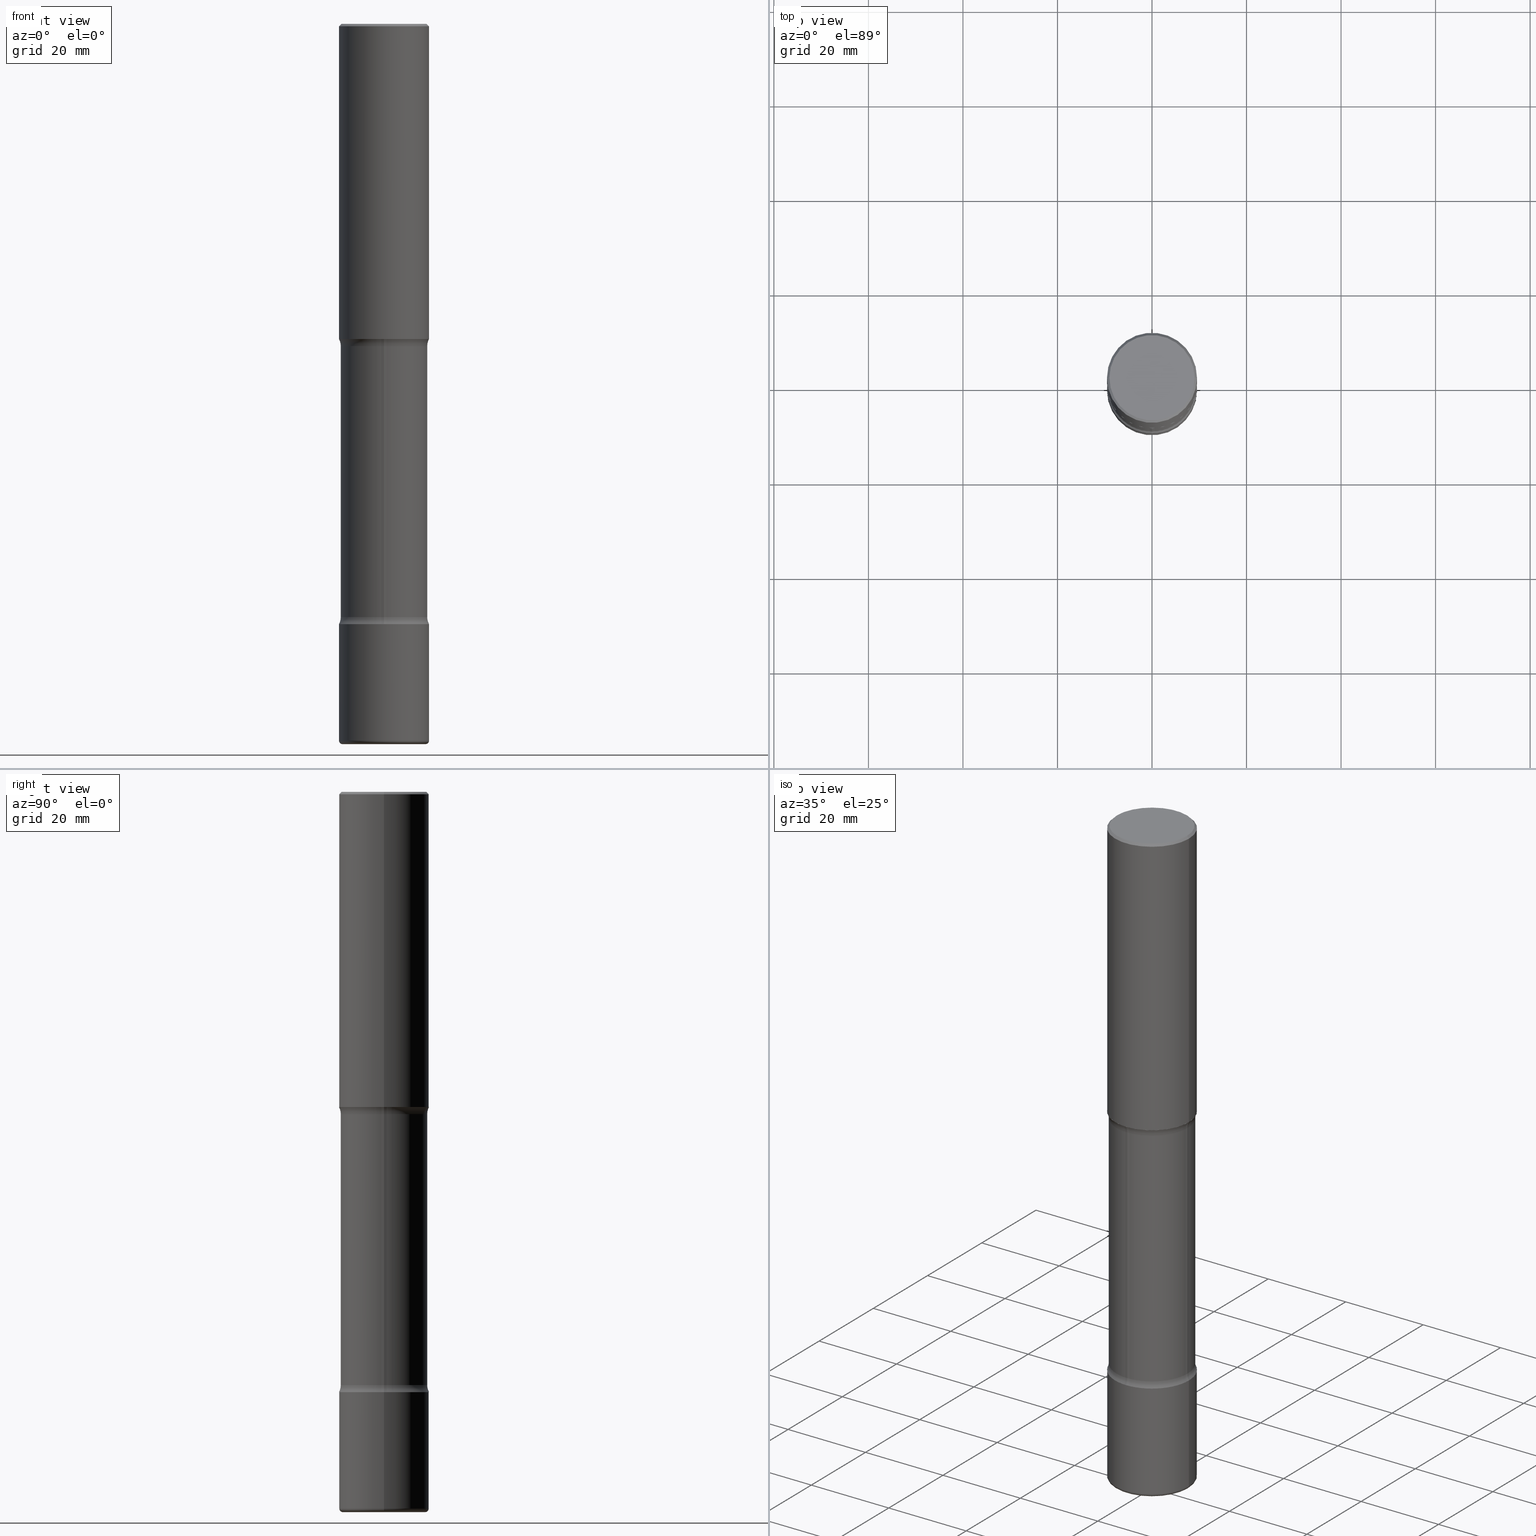
[diagram: canonical four-view strip — front | top / right | iso, engineering-drawing reading convention]
A machine part, canonical four-view strip (front | top / right | iso — engineering-drawing reading convention). The complete STEP part file that produces these views, byte-faithful:
ISO-10303-21;
HEADER;
FILE_DESCRIPTION (( 'STEP AP203' ),
    '1' );
FILE_NAME ('32863.STEP',
    '2023-03-11T07:08:39',
    ( '' ),
    ( '' ),
    'SwSTEP 2.0',
    'SolidWorks 2022',
    '' );
FILE_SCHEMA (( 'CONFIG_CONTROL_DESIGN' ));
ENDSEC;

DATA;
#1 = DIRECTION ( 'NONE',  ( -2.445468806185136597E-29, 3.491481338843145583E-15, 1.000000000000000000 ) ) ;
#2 = CARTESIAN_POINT ( 'NONE',  ( 1.467281283711082406E-28, -2.094888803305887902E-14, -6.000000000000001776 ) ) ;
#3 = CIRCLE ( 'NONE', #35, 0.3600000000000002642 ) ;
#4 = ORIENTED_EDGE ( 'NONE', *, *, #71, .F. ) ;
#5 = VECTOR ( 'NONE', #792, 39.37007874015748143 ) ;
#6 = DIRECTION ( 'NONE',  ( -2.445468806185136597E-29, 3.491481338843145583E-15, 1.000000000000000000 ) ) ;
#7 = APPROVAL ( #584, 'UNSPECIFIED' ) ;
#8 = ORIENTED_EDGE ( 'NONE', *, *, #672, .F. ) ;
#9 = ORIENTED_EDGE ( 'NONE', *, *, #31, .T. ) ;
#10 = DIRECTION ( 'NONE',  ( -1.000000000000000000, 6.982962677686265133E-15, 0.000000000000000000 ) ) ;
#11 = ORIENTED_EDGE ( 'NONE', *, *, #750, .F. ) ;
#12 = DIRECTION ( 'NONE',  ( -2.445468806185136597E-29, 3.491481338843145583E-15, 1.000000000000000000 ) ) ;
#13 = ORIENTED_EDGE ( 'NONE', *, *, #95, .F. ) ;
#14 = VERTEX_POINT ( 'NONE', #212 ) ;
#15 = CARTESIAN_POINT ( 'NONE',  ( 2.618611004132413520E-15, 0.3749999999999908962, -2.625000000000001776 ) ) ;
#16 = EDGE_LOOP ( 'NONE', ( #200, #480 ) ) ;
#17 = CIRCLE ( 'NONE', #245, 0.3750000000000000555 ) ;
#18 = CARTESIAN_POINT ( 'NONE',  ( -0.3074999999999998845, -1.880162700967035548E-14, -6.000000000000001776 ) ) ;
#19 = CIRCLE ( 'NONE', #318, 0.3750000000000000555 ) ;
#20 = CC_DESIGN_PERSON_AND_ORGANIZATION_ASSIGNMENT ( #590, #353, ( #152 ) ) ;
#21 = LINE ( 'NONE', #389, #663 ) ;
#22 = LINE ( 'NONE', #198, #413 ) ;
#23 = ORIENTED_EDGE ( 'NONE', *, *, #168, .T. ) ;
#24 = CARTESIAN_POINT ( 'NONE',  ( -0.4850000000000002087, -1.380397920673957957E-14, -4.940628289564810594 ) ) ;
#25 = CARTESIAN_POINT ( 'NONE',  ( 1.208199574947105826E-28, -1.725033575765148709E-14, -4.940628289564810594 ) ) ;
#26 =( CONVERSION_BASED_UNIT ( 'INCH', #714 ) LENGTH_UNIT ( ) NAMED_UNIT ( #237 ) );
#27 = EDGE_LOOP ( 'NONE', ( #383, #169, #709, #435 ) ) ;
#28 =( NAMED_UNIT ( * ) SI_UNIT ( $, .STERADIAN. ) SOLID_ANGLE_UNIT ( ) );
#29 = DIRECTION ( 'NONE',  ( 1.000000000000000000, -6.982962677686269077E-15, 0.000000000000000000 ) ) ;
#30 = DIRECTION ( 'NONE',  ( 2.445468806185136597E-29, -3.491481338843145583E-15, -1.000000000000000000 ) ) ;
#31 = EDGE_CURVE ( 'NONE', #484, #219, #465, .T. ) ;
#32 = ORIENTED_EDGE ( 'NONE', *, *, #545, .F. ) ;
#33 = ORIENTED_EDGE ( 'NONE', *, *, #135, .F. ) ;
#34 = EDGE_CURVE ( 'NONE', #94, #335, #279, .T. ) ;
#35 = AXIS2_PLACEMENT_3D ( 'NONE', #288, #171, #478 ) ;
#36 = TOROIDAL_SURFACE ( 'NONE', #475, 0.4849999999999996536, 0.1249999999999999306 ) ;
#37 = CARTESIAN_POINT ( 'NONE',  ( 6.558438925970630496E-29, -9.381181247110562342E-15, -2.684371710435190739 ) ) ;
#38 = ORIENTED_EDGE ( 'NONE', *, *, #631, .T. ) ;
#39 = ORIENTED_EDGE ( 'NONE', *, *, #160, .T. ) ;
#40 = MANIFOLD_SOLID_BREP ( 'Body-Move/Copy2[3]', #802 ) ;
#41 = PERSON_AND_ORGANIZATION_ROLE ( 'creator' ) ;
#42 = CARTESIAN_POINT ( 'NONE',  ( 2.618611004132472684E-15, 0.3749999999999826250, -5.000000000000002665 ) ) ;
#43 = CARTESIAN_POINT ( 'NONE',  ( 0.3549999999999997047, -2.538996582575039076E-15, 4.268512490117958041E-18 ) ) ;
#44 = VERTEX_POINT ( 'NONE', #43 ) ;
#45 = DIRECTION ( 'NONE',  ( -1.000000000000000000, 6.982962677686265922E-15, 0.000000000000000000 ) ) ;
#46 = CARTESIAN_POINT ( 'NONE',  ( 1.367617253546767986E-27, 1.538893835614542226E-13, -6.000000000000001776 ) ) ;
#47 = ORIENTED_EDGE ( 'NONE', *, *, #571, .F. ) ;
#48 = EDGE_LOOP ( 'NONE', ( #38, #136, #798, #464 ) ) ;
#49 = CIRCLE ( 'NONE', #348, 0.3750000000000000555 ) ;
#50 = CC_DESIGN_PERSON_AND_ORGANIZATION_ASSIGNMENT ( #92, #647, ( #553 ) ) ;
#51 = DIRECTION ( 'NONE',  ( 2.448106689014602584E-29, -3.487703740492383676E-15, -1.000000000000000000 ) ) ;
#52 = VECTOR ( 'NONE', #393, 39.37007874015748143 ) ;
#53 = APPROVAL_PERSON_ORGANIZATION ( #611, #239, #324 ) ;
#54 = CARTESIAN_POINT ( 'NONE',  ( 0.4849999999999996536, -1.275917063218076189E-14, -2.684371710435190739 ) ) ;
#55 = CARTESIAN_POINT ( 'NONE',  ( -0.3749999999999997780, 2.548781377355484746E-15, -0.02000000000000008715 ) ) ;
#56 = DIRECTION ( 'NONE',  ( -2.445468806185136597E-29, 3.491481338843145583E-15, 1.000000000000000000 ) ) ;
#57 = DIRECTION ( 'NONE',  ( 6.860497997771528407E-15, 1.000000000000000000, 0.000000000000000000 ) ) ;
#58 = FACE_OUTER_BOUND ( 'NONE', #784, .T. ) ;
#59 = CARTESIAN_POINT ( 'NONE',  ( 6.419355616235984688E-29, -9.165138514463258190E-15, -2.625000000000000444 ) ) ;
#60 = DIRECTION ( 'NONE',  ( -1.000000000000000000, 7.105427357600998703E-15, 0.000000000000000000 ) ) ;
#61 = ADVANCED_FACE ( 'NONE', ( #172 ), #666, .F. ) ;
#62 = DIRECTION ( 'NONE',  ( 6.860497997771531562E-15, 1.000000000000000000, 0.000000000000000000 ) ) ;
#63 = AXIS2_PLACEMENT_3D ( 'NONE', #605, #673, #57 ) ;
#64 = FACE_OUTER_BOUND ( 'NONE', #649, .T. ) ;
#65 = AXIS2_PLACEMENT_3D ( 'NONE', #235, #176, #356 ) ;
#66 = AXIS2_PLACEMENT_3D ( 'NONE', #236, #694, #567 ) ;
#67 = CARTESIAN_POINT ( 'NONE',  ( 1.208199574947105826E-28, -1.725033575765148709E-14, -4.940628289564810594 ) ) ;
#68 = AXIS2_PLACEMENT_3D ( 'NONE', #25, #497, #379 ) ;
#69 = ORIENTED_EDGE ( 'NONE', *, *, #282, .T. ) ;
#70 = MANIFOLD_SOLID_BREP ( 'Body-Move/Copy2[1]', #549 ) ;
#71 = EDGE_CURVE ( 'NONE', #743, #219, #628, .T. ) ;
#72 = EDGE_CURVE ( 'NONE', #602, #89, #163, .T. ) ;
#73 = ADVANCED_FACE ( 'NONE', ( #242 ), #125, .T. ) ;
#74 = FACE_OUTER_BOUND ( 'NONE', #138, .T. ) ;
#75 = ORIENTED_EDGE ( 'NONE', *, *, #623, .F. ) ;
#76 = CARTESIAN_POINT ( 'NONE',  ( 1.222734403092568523E-28, -1.745740669421572989E-14, -5.000000000000000000 ) ) ;
#77 = DIRECTION ( 'NONE',  ( 2.448106689014602584E-29, -3.487703740492383676E-15, -1.000000000000000000 ) ) ;
#78 = CARTESIAN_POINT ( 'NONE',  ( -0.3750000000000000555, -1.952948811519682680E-15, -2.625000000000000444 ) ) ;
#79 = DIRECTION ( 'NONE',  ( -2.445468806185136597E-29, 3.491481338843145583E-15, 1.000000000000000000 ) ) ;
#80 = CC_DESIGN_DATE_AND_TIME_ASSIGNMENT ( #202, #651, ( #490 ) ) ;
#81 = DIRECTION ( 'NONE',  ( 2.448106689014602584E-29, -3.487703740492383676E-15, -1.000000000000000000 ) ) ;
#82 = AXIS2_PLACEMENT_3D ( 'NONE', #344, #470, #734 ) ;
#83 = CIRCLE ( 'NONE', #629, 0.3450000000000000289 ) ;
#84 = ADVANCED_FACE ( 'NONE', ( #461 ), #90, .T. ) ;
#85 = DIRECTION ( 'NONE',  ( -2.445468806185136597E-29, 3.491481338843145583E-15, 1.000000000000000000 ) ) ;
#86 = CARTESIAN_POINT ( 'NONE',  ( -0.3600000000000002642, -1.474251453077752871E-14, -4.940628289564810594 ) ) ;
#87 = DIRECTION ( 'NONE',  ( 1.000000000000000000, -6.982962677686265922E-15, 4.876176775795935793E-29 ) ) ;
#88 = FACE_OUTER_BOUND ( 'NONE', #458, .T. ) ;
#89 = VERTEX_POINT ( 'NONE', #606 ) ;
#90 = CONICAL_SURFACE ( 'NONE', #786, 0.3749999999999997780, 0.7853981633974476129 ) ;
#91 = AXIS2_PLACEMENT_3D ( 'NONE', #232, #340, #737 ) ;
#92 = PERSON_AND_ORGANIZATION ( #650, #776 ) ;
#93 = EDGE_LOOP ( 'NONE', ( #632, #195, #39, #661 ) ) ;
#94 = VERTEX_POINT ( 'NONE', #42 ) ;
#95 = EDGE_CURVE ( 'NONE', #204, #201, #419, .T. ) ;
#96 = DATE_AND_TIME ( #595, #295 ) ;
#97 = DIRECTION ( 'NONE',  ( 6.982962677686265922E-15, 1.000000000000000000, -3.487703740492383676E-15 ) ) ;
#98 = EDGE_LOOP ( 'NONE', ( #69, #536 ) ) ;
#99 = ORIENTED_EDGE ( 'NONE', *, *, #287, .F. ) ;
#100 = DATE_TIME_ROLE ( 'classification_date' ) ;
#101 = DIRECTION ( 'NONE',  ( 2.448106689014602584E-29, -3.487703740492383676E-15, -1.000000000000000000 ) ) ;
#102 = DIRECTION ( 'NONE',  ( -6.982962677686266711E-15, -1.000000000000000000, 3.491481338843145583E-15 ) ) ;
#103 = ORIENTED_EDGE ( 'NONE', *, *, #724, .T. ) ;
#104 = CIRCLE ( 'NONE', #735, 0.3750000000000000555 ) ;
#105 = DIRECTION ( 'NONE',  ( 0.000000000000000000, 0.000000000000000000, 1.000000000000000000 ) ) ;
#106 = AXIS2_PLACEMENT_3D ( 'NONE', #118, #352, #290 ) ;
#107 = AXIS2_PLACEMENT_3D ( 'NONE', #403, #123, #669 ) ;
#108 = ORIENTED_EDGE ( 'NONE', *, *, #545, .T. ) ;
#109 = DIRECTION ( 'NONE',  ( -6.982962677686268288E-15, -1.000000000000000000, 0.000000000000000000 ) ) ;
#110 = EDGE_LOOP ( 'NONE', ( #771, #723, #153, #509 ) ) ;
#111 = ORIENTED_EDGE ( 'NONE', *, *, #610, .F. ) ;
#112 = LINE ( 'NONE', #55, #412 ) ;
#113 = DIRECTION ( 'NONE',  ( 1.000000000000000000, -6.860497997771530774E-15, 4.840845141861429852E-29 ) ) ;
#114 = AXIS2_PLACEMENT_3D ( 'NONE', #534, #227, #272 ) ;
#115 = AXIS2_PLACEMENT_3D ( 'NONE', #698, #373, #10 ) ;
#116 = AXIS2_PLACEMENT_3D ( 'NONE', #257, #710, #197 ) ;
#117 = CARTESIAN_POINT ( 'NONE',  ( -2.469779279197604413E-15, -0.3600000000000208589, -5.989261863381288187 ) ) ;
#118 = CARTESIAN_POINT ( 'NONE',  ( 1.208215236508657052E-28, -1.725011147517606617E-14, -4.940628289564810594 ) ) ;
#119 = DIRECTION ( 'NONE',  ( -2.445468806185136597E-29, 3.491481338843145583E-15, 1.000000000000000000 ) ) ;
#120 = DIRECTION ( 'NONE',  ( 1.000000000000000000, -6.982962677686265133E-15, 0.000000000000000000 ) ) ;
#121 = SHAPE_DEFINITION_REPRESENTATION ( #748, #755 ) ;
#122 = CARTESIAN_POINT ( 'NONE',  ( -0.4849999999999996536, -5.926301465066440834E-15, -2.684371710435190739 ) ) ;
#123 = DIRECTION ( 'NONE',  ( -2.445468806185136597E-29, 3.491481338843145583E-15, 1.000000000000000000 ) ) ;
#124 = DIRECTION ( 'NONE',  ( 1.000000000000000000, -6.982962677686261977E-15, 0.000000000000000000 ) ) ;
#125 = TOROIDAL_SURFACE ( 'NONE', #205, 0.3450000000000000289, 0.03000000000000029379 ) ;
#126 = DIRECTION ( 'NONE',  ( 0.9993908270190957621, -6.978169709227537544E-15, -0.03489949670249974795 ) ) ;
#127 = CIRCLE ( 'NONE', #487, 0.3750000000000000555 ) ;
#128 = CARTESIAN_POINT ( 'NONE',  ( 2.513866563967178131E-15, 0.3599999999999830003, -4.940628289564811482 ) ) ;
#129 = AXIS2_PLACEMENT_3D ( 'NONE', #775, #637, #313 ) ;
#130 = ADVANCED_FACE ( 'NONE', ( #530 ), #785, .T. ) ;
#131 = DIRECTION ( 'NONE',  ( 2.445468806185136597E-29, -3.491481338843145583E-15, -1.000000000000000000 ) ) ;
#132 = DIRECTION ( 'NONE',  ( -2.445468806185136597E-29, 3.491481338843145583E-15, 1.000000000000000000 ) ) ;
#133 = ORIENTED_EDGE ( 'NONE', *, *, #646, .T. ) ;
#134 = DIRECTION ( 'NONE',  ( 1.000000000000000000, -6.982962677686266711E-15, 0.000000000000000000 ) ) ;
#135 = EDGE_CURVE ( 'NONE', #704, #320, #221, .T. ) ;
#136 = ORIENTED_EDGE ( 'NONE', *, *, #369, .T. ) ;
#137 = CARTESIAN_POINT ( 'NONE',  ( 6.564547282075098274E-29, -9.372433733502923486E-15, -2.684371710435190739 ) ) ;
#138 = EDGE_LOOP ( 'NONE', ( #253, #317, #456, #569 ) ) ;
#139 = ORIENTED_EDGE ( 'NONE', *, *, #179, .T. ) ;
#140 = AXIS2_PLACEMENT_3D ( 'NONE', #46, #797, #355 ) ;
#141 = CARTESIAN_POINT ( 'NONE',  ( 0.3750000000000000555, -1.178374951859560978E-14, -2.625000000000000444 ) ) ;
#142 = ORIENTED_EDGE ( 'NONE', *, *, #610, .T. ) ;
#143 = CARTESIAN_POINT ( 'NONE',  ( 6.564547282075098274E-29, -9.372433733502923486E-15, -2.684371710435190739 ) ) ;
#144 = DIRECTION ( 'NONE',  ( 1.000000000000000000, -6.982962677686264344E-15, 0.000000000000000000 ) ) ;
#145 = ORIENTED_EDGE ( 'NONE', *, *, #483, .F. ) ;
#146 = CARTESIAN_POINT ( 'NONE',  ( 1.109248525150809584E-27, -1.583712912594858228E-13, -45.35934060353877584 ) ) ;
#147 = DIRECTION ( 'NONE',  ( -0.9993908270190957621, 6.856857904024561992E-15, -0.03489949670249974795 ) ) ;
#148 = EDGE_LOOP ( 'NONE', ( #436, #504, #395, #751 ) ) ;
#149 = VECTOR ( 'NONE', #806, 39.37007874015748854 ) ;
#150 = AXIS2_PLACEMENT_3D ( 'NONE', #2, #397, #329 ) ;
#151 = EDGE_CURVE ( 'NONE', #783, #404, #112, .T. ) ;
#152 = PRODUCT_DEFINITION_FORMATION_WITH_SPECIFIED_SOURCE ( 'ANY', '', #553, .NOT_KNOWN. ) ;
#153 = ORIENTED_EDGE ( 'NONE', *, *, #583, .T. ) ;
#154 = ADVANCED_FACE ( 'NONE', ( #229 ), #216, .T. ) ;
#155 = DIRECTION ( 'NONE',  ( 6.982962677686265922E-15, 1.000000000000000000, -2.913971193241880372E-15 ) ) ;
#156 = VERTEX_POINT ( 'NONE', #180 ) ;
#157 = VERTEX_POINT ( 'NONE', #414 ) ;
#158 = APPLICATION_PROTOCOL_DEFINITION ( 'international standard', 'config_control_design', 1994, #558 ) ;
#159 = DIRECTION ( 'NONE',  ( 2.448106689014602584E-29, -3.487703740492383676E-15, -1.000000000000000000 ) ) ;
#160 = EDGE_CURVE ( 'NONE', #270, #404, #659, .T. ) ;
#161 = FACE_OUTER_BOUND ( 'NONE', #766, .T. ) ;
#162 = ORIENTED_EDGE ( 'NONE', *, *, #135, .T. ) ;
#163 = CIRCLE ( 'NONE', #564, 0.3599999999999997646 ) ;
#164 = AXIS2_PLACEMENT_3D ( 'NONE', #143, #522, #312 ) ;
#165 = AXIS2_PLACEMENT_3D ( 'NONE', #502, #634, #144 ) ;
#166 = DIRECTION ( 'NONE',  ( -2.445468806185136597E-29, 3.491481338843145583E-15, 1.000000000000000000 ) ) ;
#167 = ORIENTED_EDGE ( 'NONE', *, *, #556, .T. ) ;
#168 = EDGE_CURVE ( 'NONE', #783, #44, #266, .T. ) ;
#169 = ORIENTED_EDGE ( 'NONE', *, *, #585, .T. ) ;
#170 = DIRECTION ( 'NONE',  ( 1.000000000000000000, -6.982962677686266711E-15, 4.876176775795935793E-29 ) ) ;
#171 = DIRECTION ( 'NONE',  ( -2.445468806185136597E-29, 3.491481338843145583E-15, 1.000000000000000000 ) ) ;
#172 = FACE_OUTER_BOUND ( 'NONE', #213, .T. ) ;
#173 = DIRECTION ( 'NONE',  ( -2.448106689014602584E-29, 3.487703740492383282E-15, 1.000000000000000000 ) ) ;
#174 = CARTESIAN_POINT ( 'NONE',  ( 3.386736898677901911E-15, 0.4849999999999903277, -2.684371710435192515 ) ) ;
#175 = DIRECTION ( 'NONE',  ( -1.000000000000000000, 7.105427357601050768E-15, 0.000000000000000000 ) ) ;
#176 = DIRECTION ( 'NONE',  ( -2.445468806185136597E-29, 3.491481338843145583E-15, 1.000000000000000000 ) ) ;
#177 = LINE ( 'NONE', #220, #747 ) ;
#178 = DATE_AND_TIME ( #473, #551 ) ;
#179 = EDGE_CURVE ( 'NONE', #204, #270, #707, .T. ) ;
#180 = CARTESIAN_POINT ( 'NONE',  ( 0.3074999999999998845, -2.305849116737362358E-14, -6.000000000000001776 ) ) ;
#181 = CIRCLE ( 'NONE', #744, 0.1249999999999999584 ) ;
#182 = AXIS2_PLACEMENT_3D ( 'NONE', #421, #370, #689 ) ;
#183 = ORIENTED_EDGE ( 'NONE', *, *, #369, .F. ) ;
#184 = CLOSED_SHELL ( 'NONE', ( #795, #84, #452, #341, #328, #130 ) ) ;
#185 = CIRCLE ( 'NONE', #774, 0.1249999999999999029 ) ;
#186 = APPROVAL_PERSON_ORGANIZATION ( #523, #7, #781 ) ;
#187 = ORIENTED_EDGE ( 'NONE', *, *, #392, .F. ) ;
#188 = EDGE_CURVE ( 'NONE', #555, #743, #181, .T. ) ;
#189 = DIRECTION ( 'NONE',  ( 1.000000000000000000, -6.982962677686270655E-15, 0.000000000000000000 ) ) ;
#190 = EDGE_CURVE ( 'NONE', #367, #532, #636, .T. ) ;
#191 = AXIS2_PLACEMENT_3D ( 'NONE', #231, #289, #615 ) ;
#192 = TOROIDAL_SURFACE ( 'NONE', #294, 0.4850000000000002087, 0.1250000000000000000 ) ;
#193 = DIRECTION ( 'NONE',  ( -2.445468806185136597E-29, 3.491481338843145583E-15, 1.000000000000000000 ) ) ;
#194 = AXIS2_PLACEMENT_3D ( 'NONE', #303, #357, #479 ) ;
#195 = ORIENTED_EDGE ( 'NONE', *, *, #287, .T. ) ;
#196 = EDGE_LOOP ( 'NONE', ( #255, #261, #139, #645 ) ) ;
#197 = DIRECTION ( 'NONE',  ( 1.000000000000000000, -6.982962677686267499E-15, 0.000000000000000000 ) ) ;
#198 = CARTESIAN_POINT ( 'NONE',  ( -2.262502573724503006E-17, -2.091139602944069967E-14, -5.989261863381289963 ) ) ;
#199 = PLANE ( 'NONE',  #758 ) ;
#200 = ORIENTED_EDGE ( 'NONE', *, *, #359, .T. ) ;
#201 = VERTEX_POINT ( 'NONE', #78 ) ;
#202 = DATE_AND_TIME ( #259, #805 ) ;
#203 = DIRECTION ( 'NONE',  ( 6.982962677686265922E-15, 1.000000000000000000, -2.913971193241880372E-15 ) ) ;
#204 = VERTEX_POINT ( 'NONE', #141 ) ;
#205 = AXIS2_PLACEMENT_3D ( 'NONE', #467, #274, #608 ) ;
#206 = EDGE_CURVE ( 'NONE', #587, #14, #104, .T. ) ;
#207 =( GEOMETRIC_REPRESENTATION_CONTEXT ( 3 ) GLOBAL_UNCERTAINTY_ASSIGNED_CONTEXT ( ( #542 ) ) GLOBAL_UNIT_ASSIGNED_CONTEXT ( ( #26, #678, #28 ) ) REPRESENTATION_CONTEXT ( 'NONE', 'WORKASPACE' ) );
#208 = DATE_AND_TIME ( #643, #415 ) ;
#209 = LINE ( 'NONE', #390, #52 ) ;
#210 = ORIENTED_EDGE ( 'NONE', *, *, #248, .T. ) ;
#211 = CARTESIAN_POINT ( 'NONE',  ( 0.000000000000000000, 0.000000000000000000, 0.000000000000000000 ) ) ;
#212 = CARTESIAN_POINT ( 'NONE',  ( 0.3750000000000000555, -1.178374951859560978E-14, -2.625000000000000444 ) ) ;
#213 = EDGE_LOOP ( 'NONE', ( #779, #145 ) ) ;
#214 = DIRECTION ( 'NONE',  ( 1.000000000000000000, -6.982962677686266711E-15, 0.000000000000000000 ) ) ;
#215 = COORDINATED_UNIVERSAL_TIME_OFFSET ( 5, 0, .BEHIND. ) ;
#216 = CYLINDRICAL_SURFACE ( 'NONE', #82, 0.3599999999999999867 ) ;
#217 = ADVANCED_FACE ( 'NONE', ( #447 ), #459, .T. ) ;
#218 = PLANE ( 'NONE',  #500 ) ;
#219 = VERTEX_POINT ( 'NONE', #653 ) ;
#220 = CARTESIAN_POINT ( 'NONE',  ( 0.3750000000000001110, -2.618611004132350411E-15, 1.828566290923476483E-29 ) ) ;
#221 = CIRCLE ( 'NONE', #685, 0.03000000000000029379 ) ;
#222 = DIRECTION ( 'NONE',  ( -2.445468806185136597E-29, 3.491481338843145583E-15, 1.000000000000000000 ) ) ;
#223 = AXIS2_PLACEMENT_3D ( 'NONE', #76, #300, #306 ) ;
#224 = DIRECTION ( 'NONE',  ( 7.105427357601001859E-15, 1.000000000000000000, -3.491481338843145583E-15 ) ) ;
#225 = ORIENTED_EDGE ( 'NONE', *, *, #282, .F. ) ;
#226 = DIRECTION ( 'NONE',  ( -1.000000000000000000, 6.982962677686265922E-15, -4.883557194083112340E-29 ) ) ;
#227 = DIRECTION ( 'NONE',  ( -2.445468806185136597E-29, 3.491481338843145583E-15, 1.000000000000000000 ) ) ;
#228 = CARTESIAN_POINT ( 'NONE',  ( 1.459944877292526494E-28, -2.084414359289357934E-14, -5.969999999999999751 ) ) ;
#229 = FACE_OUTER_BOUND ( 'NONE', #719, .T. ) ;
#230 = FACE_OUTER_BOUND ( 'NONE', #148, .T. ) ;
#231 = CARTESIAN_POINT ( 'NONE',  ( 6.419355616235984688E-29, -9.165138514463258190E-15, -2.625000000000000444 ) ) ;
#232 = CARTESIAN_POINT ( 'NONE',  ( 1.464916261585646880E-28, -2.090765899545711847E-14, -5.989261863381289963 ) ) ;
#233 = AXIS2_PLACEMENT_3D ( 'NONE', #410, #537, #791 ) ;
#234 = AXIS2_PLACEMENT_3D ( 'NONE', #67, #728, #614 ) ;
#235 = CARTESIAN_POINT ( 'NONE',  ( 1.467281283711081958E-28, -2.094888803305887271E-14, -6.000000000000000888 ) ) ;
#236 = CARTESIAN_POINT ( 'NONE',  ( 3.386736898677961076E-15, 0.4849999999999829448, -4.940628289564813258 ) ) ;
#237 = DIMENSIONAL_EXPONENTS ( 1.000000000000000000, 0.000000000000000000, 0.000000000000000000, 0.000000000000000000, 0.000000000000000000, 0.000000000000000000, 0.000000000000000000 ) ;
#238 = CARTESIAN_POINT ( 'NONE',  ( 6.564547282075098274E-29, -9.372433733502923486E-15, -2.684371710435190739 ) ) ;
#239 = APPROVAL ( #773, 'UNSPECIFIED' ) ;
#240 = CARTESIAN_POINT ( 'NONE',  ( 1.222734403092568523E-28, -1.745740669421572989E-14, -5.000000000000000000 ) ) ;
#241 = VERTEX_POINT ( 'NONE', #455 ) ;
#242 = FACE_OUTER_BOUND ( 'NONE', #463, .T. ) ;
#243 = CIRCLE ( 'NONE', #448, 0.1249999999999999584 ) ;
#244 = DIRECTION ( 'NONE',  ( -1.000000000000000000, 6.982962677686265133E-15, 0.000000000000000000 ) ) ;
#245 = AXIS2_PLACEMENT_3D ( 'NONE', #310, #525, #572 ) ;
#246 = CC_DESIGN_SECURITY_CLASSIFICATION ( #738, ( #152 ) ) ;
#247 = CARTESIAN_POINT ( 'NONE',  ( 1.208215236508657052E-28, -1.725011147517606617E-14, -4.940628289564810594 ) ) ;
#248 = EDGE_CURVE ( 'NONE', #338, #367, #538, .T. ) ;
#249 = DIRECTION ( 'NONE',  ( -2.445468806185136597E-29, 3.491481338843145583E-15, 1.000000000000000000 ) ) ;
#250 = FACE_OUTER_BOUND ( 'NONE', #706, .T. ) ;
#251 = CIRCLE ( 'NONE', #720, 0.3750000000000000555 ) ;
#252 = CARTESIAN_POINT ( 'NONE',  ( 1.222734403092568523E-28, -1.745740669421572989E-14, -5.000000000000000000 ) ) ;
#253 = ORIENTED_EDGE ( 'NONE', *, *, #613, .F. ) ;
#254 = CIRCLE ( 'NONE', #68, 0.3600000000000002642 ) ;
#255 = ORIENTED_EDGE ( 'NONE', *, *, #453, .F. ) ;
#256 = CARTESIAN_POINT ( 'NONE',  ( 0.3749999999999998890, -2.618611004132349228E-15, 1.828566290923475362E-29 ) ) ;
#257 = CARTESIAN_POINT ( 'NONE',  ( 6.564547282075098274E-29, -9.372433733502923486E-15, -2.684371710435190739 ) ) ;
#258 = ORIENTED_EDGE ( 'NONE', *, *, #671, .F. ) ;
#259 = CALENDAR_DATE ( 2023, 11, 3 ) ;
#260 = EDGE_CURVE ( 'NONE', #496, #241, #400, .T. ) ;
#261 = ORIENTED_EDGE ( 'NONE', *, *, #494, .T. ) ;
#262 = VERTEX_POINT ( 'NONE', #275 ) ;
#263 = CARTESIAN_POINT ( 'NONE',  ( 1.222734403092568523E-28, -1.745740669421572989E-14, -5.000000000000000000 ) ) ;
#264 = DIRECTION ( 'NONE',  ( 1.000000000000000000, 0.000000000000000000, 0.000000000000000000 ) ) ;
#265 = CARTESIAN_POINT ( 'NONE',  ( 0.4850000000000002087, -2.063684837385390615E-14, -4.940628289564810594 ) ) ;
#266 = CIRCLE ( 'NONE', #674, 0.3549999999999997047 ) ;
#267 = AXIS2_PLACEMENT_3D ( 'NONE', #360, #173, #670 ) ;
#268 = APPROVAL_PERSON_ORGANIZATION ( #601, #350, #332 ) ;
#269 = CARTESIAN_POINT ( 'NONE',  ( 6.413090644516002406E-29, -9.174110310546317964E-15, -2.625000000000000444 ) ) ;
#270 = VERTEX_POINT ( 'NONE', #524 ) ;
#271 = APPROVAL_DATE_TIME ( #96, #239 ) ;
#272 = DIRECTION ( 'NONE',  ( 1.000000000000000000, -6.982962677686266711E-15, 0.000000000000000000 ) ) ;
#273 = ORIENTED_EDGE ( 'NONE', *, *, #188, .F. ) ;
#274 = DIRECTION ( 'NONE',  ( -2.445468806185136597E-29, 3.491481338843145583E-15, 1.000000000000000000 ) ) ;
#275 = CARTESIAN_POINT ( 'NONE',  ( 0.3750000000000002220, -2.346275459702592935E-14, -5.969999999999999751 ) ) ;
#276 = ORIENTED_EDGE ( 'NONE', *, *, #71, .T. ) ;
#277 = DIRECTION ( 'NONE',  ( 1.000000000000000000, -6.982962677686265922E-15, 4.876176775795935793E-29 ) ) ;
#278 = DIRECTION ( 'NONE',  ( -2.445468806185136597E-29, 3.491481338843145583E-15, 1.000000000000000000 ) ) ;
#279 = CIRCLE ( 'NONE', #711, 0.3750000000000000555 ) ;
#280 = TOROIDAL_SURFACE ( 'NONE', #550, 0.4849999999999996536, 0.1249999999999999306 ) ;
#281 = LOCAL_TIME ( 2, 8, 39.00000000000000000, #732 ) ;
#282 = EDGE_CURVE ( 'NONE', #14, #587, #49, .T. ) ;
#283 = EDGE_CURVE ( 'NONE', #449, #262, #486, .T. ) ;
#284 = DIRECTION ( 'NONE',  ( -6.982962677686266711E-15, -1.000000000000000000, 3.491481338843145583E-15 ) ) ;
#285 = DIRECTION ( 'NONE',  ( -0.7071067811865469066, 2.468850131082251144E-15, -0.7071067811865479058 ) ) ;
#286 = LINE ( 'NONE', #544, #498 ) ;
#287 = EDGE_CURVE ( 'NONE', #44, #270, #787, .T. ) ;
#288 = CARTESIAN_POINT ( 'NONE',  ( 1.208215236508657052E-28, -1.725011147517606617E-14, -4.940628289564810594 ) ) ;
#289 = DIRECTION ( 'NONE',  ( 2.448106689014602584E-29, -3.487703740492383282E-15, -1.000000000000000000 ) ) ;
#290 = DIRECTION ( 'NONE',  ( 1.000000000000000000, -6.982962677686263555E-15, 0.000000000000000000 ) ) ;
#291 = EDGE_CURVE ( 'NONE', #587, #602, #243, .T. ) ;
#292 = AXIS2_PLACEMENT_3D ( 'NONE', #624, #79, #134 ) ;
#293 = FACE_BOUND ( 'NONE', #725, .T. ) ;
#294 = AXIS2_PLACEMENT_3D ( 'NONE', #627, #77, #97 ) ;
#295 = LOCAL_TIME ( 2, 8, 39.00000000000000000, #215 ) ;
#296 = CARTESIAN_POINT ( 'NONE',  ( 0.3450000000000000289, -2.335801015686063598E-14, -6.000000000000000888 ) ) ;
#297 = EDGE_CURVE ( 'NONE', #555, #484, #3, .T. ) ;
#298 = DIRECTION ( 'NONE',  ( -2.445468806185136877E-29, 3.491481338843145188E-15, 1.000000000000000000 ) ) ;
#299 = CARTESIAN_POINT ( 'NONE',  ( 2.513866563967119756E-15, 0.3599999999999904388, -2.684371710435191627 ) ) ;
#300 = DIRECTION ( 'NONE',  ( -2.445468806185136597E-29, 3.491481338843145583E-15, 1.000000000000000000 ) ) ;
#301 = EDGE_CURVE ( 'NONE', #704, #449, #474, .T. ) ;
#302 = VECTOR ( 'NONE', #765, 39.37007874015748143 ) ;
#303 = CARTESIAN_POINT ( 'NONE',  ( 0.000000000000000000, 0.000000000000000000, 0.000000000000000000 ) ) ;
#304 = AXIS2_PLACEMENT_3D ( 'NONE', #137, #769, #394 ) ;
#305 = AXIS2_PLACEMENT_3D ( 'NONE', #799, #105, #264 ) ;
#306 = DIRECTION ( 'NONE',  ( 1.000000000000000000, -6.982962677686266711E-15, 0.000000000000000000 ) ) ;
#307 = DIRECTION ( 'NONE',  ( 1.000000000000000000, -6.982962677686266711E-15, 0.000000000000000000 ) ) ;
#308 = APPLICATION_CONTEXT ( 'configuration controlled 3d designs of mechanical parts and assemblies' ) ;
#309 = PLANE ( 'NONE',  #619 ) ;
#310 = CARTESIAN_POINT ( 'NONE',  ( 6.419355616235984688E-29, -9.165138514463258190E-15, -2.625000000000000444 ) ) ;
#311 = ADVANCED_FACE ( 'NONE', ( #409, #293 ), #740, .F. ) ;
#312 = DIRECTION ( 'NONE',  ( 6.982962677686265922E-15, 1.000000000000000000, -3.487703740492383676E-15 ) ) ;
#313 = DIRECTION ( 'NONE',  ( 1.000000000000000000, -6.982962677686265922E-15, 4.876176775795935793E-29 ) ) ;
#314 = DIRECTION ( 'NONE',  ( 1.000000000000000000, -6.982962677686266711E-15, 4.883557194083112901E-29 ) ) ;
#315 = ORIENTED_EDGE ( 'NONE', *, *, #418, .F. ) ;
#316 = AXIS2_PLACEMENT_3D ( 'NONE', #358, #132, #189 ) ;
#317 = ORIENTED_EDGE ( 'NONE', *, *, #759, .T. ) ;
#318 = AXIS2_PLACEMENT_3D ( 'NONE', #445, #575, #757 ) ;
#319 = PRODUCT_RELATED_PRODUCT_CATEGORY ( 'detail', '', ( #553 ) ) ;
#320 = VERTEX_POINT ( 'NONE', #801 ) ;
#321 = PERSON_AND_ORGANIZATION_ROLE ( 'creator' ) ;
#322 = ORIENTED_EDGE ( 'NONE', *, *, #188, .T. ) ;
#323 = ORIENTED_EDGE ( 'NONE', *, *, #342, .T. ) ;
#324 = APPROVAL_ROLE ( '' ) ;
#325 = DIRECTION ( 'NONE',  ( 2.448106689014602584E-29, -3.487703740492383676E-15, -1.000000000000000000 ) ) ;
#326 = CARTESIAN_POINT ( 'NONE',  ( 1.222734403092568523E-28, -1.745740669421572989E-14, -5.000000000000000000 ) ) ;
#327 = EDGE_LOOP ( 'NONE', ( #406, #716, #764 ) ) ;
#328 = ADVANCED_FACE ( 'NONE', ( #417 ), #218, .F. ) ;
#329 = DIRECTION ( 'NONE',  ( 1.000000000000000000, -6.982962677686264344E-15, 0.000000000000000000 ) ) ;
#330 = CIRCLE ( 'NONE', #106, 0.3600000000000002642 ) ;
#331 = TOROIDAL_SURFACE ( 'NONE', #107, 0.4850000000000002087, 0.1250000000000000000 ) ;
#332 = APPROVAL_ROLE ( '' ) ;
#333 = ORIENTED_EDGE ( 'NONE', *, *, #72, .F. ) ;
#334 = DIRECTION ( 'NONE',  ( -2.438088387897960049E-29, 3.491481338843145188E-15, 1.000000000000000000 ) ) ;
#335 = VERTEX_POINT ( 'NONE', #603 ) ;
#336 = CYLINDRICAL_SURFACE ( 'NONE', #503, 0.3749999999999998890 ) ;
#337 = CARTESIAN_POINT ( 'NONE',  ( 6.419355616235984688E-29, -9.165138514463258190E-15, -2.625000000000000444 ) ) ;
#338 = VERTEX_POINT ( 'NONE', #730 ) ;
#339 = PLANE ( 'NONE',  #233 ) ;
#340 = DIRECTION ( 'NONE',  ( 2.448106689014602584E-29, -3.487703740492383676E-15, -1.000000000000000000 ) ) ;
#341 = ADVANCED_FACE ( 'NONE', ( #533 ), #339, .F. ) ;
#342 = EDGE_CURVE ( 'NONE', #335, #626, #699, .T. ) ;
#343 = EDGE_CURVE ( 'NONE', #157, #156, #286, .T. ) ;
#344 = CARTESIAN_POINT ( 'NONE',  ( 6.419355616235984688E-29, -9.165138514463258190E-15, -2.625000000000000444 ) ) ;
#345 =( LENGTH_UNIT ( ) NAMED_UNIT ( * ) SI_UNIT ( $, .METRE. ) );
#346 = FACE_OUTER_BOUND ( 'NONE', #761, .T. ) ;
#347 = CARTESIAN_POINT ( 'NONE',  ( -0.3599999999999997646, -6.657541570064724674E-15, -2.684371710435190739 ) ) ;
#348 = AXIS2_PLACEMENT_3D ( 'NONE', #396, #56, #416 ) ;
#349 = CIRCLE ( 'NONE', #712, 0.1249999999999999584 ) ;
#350 = APPROVAL ( #658, 'UNSPECIFIED' ) ;
#351 = CARTESIAN_POINT ( 'NONE',  ( -0.3750000000000000555, -6.500603255362883282E-15, -2.625000000000000444 ) ) ;
#352 = DIRECTION ( 'NONE',  ( -2.445468806185136597E-29, 3.491481338843145583E-15, 1.000000000000000000 ) ) ;
#353 = PERSON_AND_ORGANIZATION_ROLE ( 'design_supplier' ) ;
#354 = DIRECTION ( 'NONE',  ( 1.000000000000000000, -6.982962677686265922E-15, 0.000000000000000000 ) ) ;
#355 = DIRECTION ( 'NONE',  ( 1.000000000000000000, -6.982962677686265922E-15, 4.876176775795935793E-29 ) ) ;
#356 = DIRECTION ( 'NONE',  ( 1.000000000000000000, -6.982962677686261977E-15, 0.000000000000000000 ) ) ;
#357 = DIRECTION ( 'NONE',  ( -2.445468806185136597E-29, 3.491481338843145583E-15, 1.000000000000000000 ) ) ;
#358 = CARTESIAN_POINT ( 'NONE',  ( 1.459944877292526494E-28, -2.084414359289357934E-14, -5.969999999999999751 ) ) ;
#359 = EDGE_CURVE ( 'NONE', #593, #468, #251, .T. ) ;
#360 = CARTESIAN_POINT ( 'NONE',  ( 1.222734403092568523E-28, -1.745740669421572989E-14, -5.000000000000000000 ) ) ;
#361 = VECTOR ( 'NONE', #298, 39.37007874015748143 ) ;
#362 = CONICAL_SURFACE ( 'NONE', #115, 1127.411546571520148, 1.535889741755011251 ) ;
#363 = AXIS2_PLACEMENT_3D ( 'NONE', #146, #131, #244 ) ;
#364 = FACE_OUTER_BOUND ( 'NONE', #381, .T. ) ;
#365 = CYLINDRICAL_SURFACE ( 'NONE', #402, 0.3750000000000001110 ) ;
#366 = DIRECTION ( 'NONE',  ( -2.445468806185136597E-29, 3.491481338843145583E-15, 1.000000000000000000 ) ) ;
#367 = VERTEX_POINT ( 'NONE', #299 ) ;
#368 = DIRECTION ( 'NONE',  ( 2.445468806185136597E-29, -3.491481338843145583E-15, -1.000000000000000000 ) ) ;
#369 = EDGE_CURVE ( 'NONE', #555, #602, #489, .T. ) ;
#370 = DIRECTION ( 'NONE',  ( -2.445468806185136597E-29, 3.491481338843145583E-15, 1.000000000000000000 ) ) ;
#371 = AXIS2_PLACEMENT_3D ( 'NONE', #471, #682, #680 ) ;
#372 = CC_DESIGN_PERSON_AND_ORGANIZATION_ASSIGNMENT ( #529, #321, ( #152 ) ) ;
#373 = DIRECTION ( 'NONE',  ( 2.445468806185136597E-29, -3.491481338843145583E-15, -1.000000000000000000 ) ) ;
#374 = CIRCLE ( 'NONE', #316, 0.3750000000000001110 ) ;
#375 = ORIENTED_EDGE ( 'NONE', *, *, #190, .T. ) ;
#376 = ORIENTED_EDGE ( 'NONE', *, *, #151, .T. ) ;
#377 = CARTESIAN_POINT ( 'NONE',  ( 6.419355616235984688E-29, -9.165138514463258190E-15, -2.625000000000000444 ) ) ;
#378 = ORIENTED_EDGE ( 'NONE', *, *, #609, .T. ) ;
#379 = DIRECTION ( 'NONE',  ( 6.982962677686265922E-15, 1.000000000000000000, -3.035386659626956765E-15 ) ) ;
#380 = EDGE_LOOP ( 'NONE', ( #23, #443 ) ) ;
#381 = EDGE_LOOP ( 'NONE', ( #505, #322, #276, #600 ) ) ;
#382 = ADVANCED_FACE ( 'NONE', ( #364 ), #450, .F. ) ;
#383 = ORIENTED_EDGE ( 'NONE', *, *, #248, .F. ) ;
#384 = PERSON_AND_ORGANIZATION ( #650, #776 ) ;
#385 = AXIS2_PLACEMENT_3D ( 'NONE', #337, #591, #29 ) ;
#386 = AXIS2_PLACEMENT_3D ( 'NONE', #554, #30, #437 ) ;
#387 = EDGE_LOOP ( 'NONE', ( #451, #4 ) ) ;
#388 = CC_DESIGN_APPROVAL ( #7, ( #738 ) ) ;
#389 = CARTESIAN_POINT ( 'NONE',  ( 0.3599999999999999867, -1.167900507843031484E-14, -2.625000000000000444 ) ) ;
#390 = CARTESIAN_POINT ( 'NONE',  ( -0.3749999999999998890, 2.664535259100374908E-15, -1.844600658845589038E-29 ) ) ;
#391 = PERSON_AND_ORGANIZATION ( #650, #776 ) ;
#392 = EDGE_CURVE ( 'NONE', #94, #532, #644, .T. ) ;
#393 = DIRECTION ( 'NONE',  ( -2.445468806185136877E-29, 3.491481338843145188E-15, 1.000000000000000000 ) ) ;
#394 = DIRECTION ( 'NONE',  ( 1.000000000000000000, -6.982962677686266711E-15, 4.883557194083112901E-29 ) ) ;
#395 = ORIENTED_EDGE ( 'NONE', *, *, #160, .F. ) ;
#396 = CARTESIAN_POINT ( 'NONE',  ( 6.419355616235984688E-29, -9.165138514463258190E-15, -2.625000000000000444 ) ) ;
#397 = DIRECTION ( 'NONE',  ( -2.445468806185136597E-29, 3.491481338843145583E-15, 1.000000000000000000 ) ) ;
#398 = ORIENTED_EDGE ( 'NONE', *, *, #418, .T. ) ;
#399 = ORIENTED_EDGE ( 'NONE', *, *, #34, .T. ) ;
#400 = CIRCLE ( 'NONE', #772, 0.3750000000000000555 ) ;
#401 = ORIENTED_EDGE ( 'NONE', *, *, #609, .F. ) ;
#402 = AXIS2_PLACEMENT_3D ( 'NONE', #557, #633, #87 ) ;
#403 = CARTESIAN_POINT ( 'NONE',  ( 1.208215236508657052E-28, -1.725011147517606617E-14, -4.940628289564810594 ) ) ;
#404 = VERTEX_POINT ( 'NONE', #568 ) ;
#405 = ADVANCED_FACE ( 'NONE', ( #64 ), #565, .F. ) ;
#406 = ORIENTED_EDGE ( 'NONE', *, *, #499, .F. ) ;
#407 = EDGE_CURVE ( 'NONE', #44, #783, #433, .T. ) ;
#408 = CARTESIAN_POINT ( 'NONE',  ( -0.3450000000000000289, -1.839277115452122915E-14, -5.969999999999999751 ) ) ;
#409 = FACE_OUTER_BOUND ( 'NONE', #705, .T. ) ;
#410 = CARTESIAN_POINT ( 'NONE',  ( 2.478951750578622237E-15, 0.3549999999999997047, -1.237341619044265441E-15 ) ) ;
#411 = CALENDAR_DATE ( 2023, 11, 3 ) ;
#412 = VECTOR ( 'NONE', #285, 39.37007874015748854 ) ;
#413 = VECTOR ( 'NONE', #147, 39.37007874015748143 ) ;
#414 = CARTESIAN_POINT ( 'NONE',  ( 1.466235203000379650E-28, -2.088877100370330775E-14, -5.989261863381289963 ) ) ;
#415 = LOCAL_TIME ( 2, 8, 39.00000000000000000, #517 ) ;
#416 = DIRECTION ( 'NONE',  ( 1.000000000000000000, -6.982962677686266711E-15, 0.000000000000000000 ) ) ;
#417 = FACE_OUTER_BOUND ( 'NONE', #660, .T. ) ;
#418 = EDGE_CURVE ( 'NONE', #262, #320, #374, .T. ) ;
#419 = CIRCLE ( 'NONE', #114, 0.3750000000000000555 ) ;
#420 = CIRCLE ( 'NONE', #539, 0.1249999999999999029 ) ;
#421 = CARTESIAN_POINT ( 'NONE',  ( -1.043851414335219820E-46, 1.490343170380447200E-32, 4.268512490100411279E-18 ) ) ;
#422 = ORIENTED_EDGE ( 'NONE', *, *, #499, .T. ) ;
#423 = ORIENTED_EDGE ( 'NONE', *, *, #206, .F. ) ;
#424 = LINE ( 'NONE', #426, #736 ) ;
#425 = ORIENTED_EDGE ( 'NONE', *, *, #291, .T. ) ;
#426 = CARTESIAN_POINT ( 'NONE',  ( -0.3750000000000001110, 2.664535259100376486E-15, -1.844600658845590159E-29 ) ) ;
#427 = DIRECTION ( 'NONE',  ( 7.105427357601001859E-15, 1.000000000000000000, -3.491481338843145583E-15 ) ) ;
#428 = ADVANCED_FACE ( 'NONE', ( #430 ), #362, .F. ) ;
#429 = EDGE_LOOP ( 'NONE', ( #398, #515, #431, #11 ) ) ;
#430 = FACE_OUTER_BOUND ( 'NONE', #441, .T. ) ;
#431 = ORIENTED_EDGE ( 'NONE', *, *, #359, .F. ) ;
#432 = VECTOR ( 'NONE', #506, 39.37007874015748143 ) ;
#433 = CIRCLE ( 'NONE', #182, 0.3549999999999997047 ) ;
#434 = DIRECTION ( 'NONE',  ( 2.438088387897960049E-29, -3.491481338843145188E-15, -1.000000000000000000 ) ) ;
#435 = ORIENTED_EDGE ( 'NONE', *, *, #583, .F. ) ;
#436 = ORIENTED_EDGE ( 'NONE', *, *, #95, .T. ) ;
#437 = DIRECTION ( 'NONE',  ( -1.000000000000000000, 6.982962677686265922E-15, 0.000000000000000000 ) ) ;
#438 = CC_DESIGN_PERSON_AND_ORGANIZATION_ASSIGNMENT ( #391, #41, ( #490 ) ) ;
#439 = ORIENTED_EDGE ( 'NONE', *, *, #631, .F. ) ;
#440 = ORIENTED_EDGE ( 'NONE', *, *, #760, .T. ) ;
#441 = EDGE_LOOP ( 'NONE', ( #762, #422, #32 ) ) ;
#442 = FACE_OUTER_BOUND ( 'NONE', #327, .T. ) ;
#443 = ORIENTED_EDGE ( 'NONE', *, *, #407, .T. ) ;
#444 = CYLINDRICAL_SURFACE ( 'NONE', #91, 0.3599999999999999867 ) ;
#445 = CARTESIAN_POINT ( 'NONE',  ( 1.222734403092568523E-28, -1.745740669421572989E-14, -5.000000000000000000 ) ) ;
#446 = PERSON_AND_ORGANIZATION_ROLE ( 'classification_officer' ) ;
#447 = FACE_OUTER_BOUND ( 'NONE', #48, .T. ) ;
#448 = AXIS2_PLACEMENT_3D ( 'NONE', #122, #224, #60 ) ;
#449 = VERTEX_POINT ( 'NONE', #296 ) ;
#450 = TOROIDAL_SURFACE ( 'NONE', #746, 0.4850000000000002087, 0.1250000000000000000 ) ;
#451 = ORIENTED_EDGE ( 'NONE', *, *, #556, .F. ) ;
#452 = ADVANCED_FACE ( 'NONE', ( #250 ), #803, .T. ) ;
#453 = EDGE_CURVE ( 'NONE', #201, #404, #209, .T. ) ;
#454 = APPLICATION_PROTOCOL_DEFINITION ( 'international standard', 'config_control_design', 1994, #308 ) ;
#455 = CARTESIAN_POINT ( 'NONE',  ( -2.572686749164260438E-15, -0.3750000000000091593, -2.624999999999999556 ) ) ;
#456 = ORIENTED_EDGE ( 'NONE', *, *, #750, .T. ) ;
#457 = ORIENTED_EDGE ( 'NONE', *, *, #571, .T. ) ;
#458 = EDGE_LOOP ( 'NONE', ( #423, #425, #638, #401 ) ) ;
#459 = CYLINDRICAL_SURFACE ( 'NONE', #385, 0.3599999999999999867 ) ;
#460 = COORDINATED_UNIVERSAL_TIME_OFFSET ( 5, 0, .BEHIND. ) ;
#461 = FACE_OUTER_BOUND ( 'NONE', #93, .T. ) ;
#462 = DIRECTION ( 'NONE',  ( 6.982962677686266711E-15, 1.000000000000000000, -3.035386659626961104E-15 ) ) ;
#463 = EDGE_LOOP ( 'NONE', ( #33, #656, #713, #780 ) ) ;
#464 = ORIENTED_EDGE ( 'NONE', *, *, #724, .F. ) ;
#465 = CIRCLE ( 'NONE', #596, 0.1249999999999999584 ) ;
#466 = CIRCLE ( 'NONE', #566, 0.3750000000000001110 ) ;
#467 = CARTESIAN_POINT ( 'NONE',  ( 1.459944877292526494E-28, -2.084414359289357934E-14, -5.969999999999999751 ) ) ;
#468 = VERTEX_POINT ( 'NONE', #763 ) ;
#469 = CARTESIAN_POINT ( 'NONE',  ( -2.521233014180918226E-15, -0.3600000000000175282, -4.940628289564809705 ) ) ;
#470 = DIRECTION ( 'NONE',  ( -2.445468806185136597E-29, 3.491481338843145583E-15, 1.000000000000000000 ) ) ;
#471 = CARTESIAN_POINT ( 'NONE',  ( 0.3450000000000000289, -2.325326571669533946E-14, -5.969999999999999751 ) ) ;
#472 = CARTESIAN_POINT ( 'NONE',  ( 1.464916261585646880E-28, -2.090765899545711847E-14, -5.989261863381289963 ) ) ;
#473 = CALENDAR_DATE ( 2023, 11, 3 ) ;
#474 = CIRCLE ( 'NONE', #65, 0.3450000000000000289 ) ;
#475 = AXIS2_PLACEMENT_3D ( 'NONE', #238, #741, #687 ) ;
#476 = ADVANCED_FACE ( 'NONE', ( #88 ), #280, .F. ) ;
#477 = AXIS2_PLACEMENT_3D ( 'NONE', #531, #51, #462 ) ;
#478 = DIRECTION ( 'NONE',  ( 1.000000000000000000, -6.982962677686263555E-15, 0.000000000000000000 ) ) ;
#479 = DIRECTION ( 'NONE',  ( 1.000000000000000000, -6.982962677686265922E-15, 4.876176775795935793E-29 ) ) ;
#480 = ORIENTED_EDGE ( 'NONE', *, *, #752, .T. ) ;
#481 = DIRECTION ( 'NONE',  ( -2.445468806185136597E-29, 3.491481338843145583E-15, 1.000000000000000000 ) ) ;
#482 = CARTESIAN_POINT ( 'NONE',  ( -0.3599999999999999867, -6.607184665726898404E-15, -2.625000000000000444 ) ) ;
#483 = EDGE_CURVE ( 'NONE', #241, #496, #127, .T. ) ;
#484 = VERTEX_POINT ( 'NONE', #578 ) ;
#485 = CARTESIAN_POINT ( 'NONE',  ( 4.890937612370294178E-31, -6.982962677686321191E-17, -0.02000000000000008715 ) ) ;
#486 = CIRCLE ( 'NONE', #371, 0.03000000000000029379 ) ;
#487 = AXIS2_PLACEMENT_3D ( 'NONE', #512, #101, #203 ) ;
#488 = CIRCLE ( 'NONE', #116, 0.3599999999999997646 ) ;
#489 = LINE ( 'NONE', #482, #361 ) ;
#490 = PRODUCT_DEFINITION ( 'UNKNOWN', '', #152, #616 ) ;
#491 = FACE_OUTER_BOUND ( 'NONE', #667, .T. ) ;
#492 = ORIENTED_EDGE ( 'NONE', *, *, #494, .F. ) ;
#493 = DIRECTION ( 'NONE',  ( 6.982962677686265922E-15, 1.000000000000000000, -3.487703740492383676E-15 ) ) ;
#494 = EDGE_CURVE ( 'NONE', #201, #204, #17, .T. ) ;
#495 = DIRECTION ( 'NONE',  ( -1.000000000000000000, 7.105427357600998703E-15, 0.000000000000000000 ) ) ;
#496 = VERTEX_POINT ( 'NONE', #15 ) ;
#497 = DIRECTION ( 'NONE',  ( 2.448106689014602584E-29, -3.487703740492383676E-15, -1.000000000000000000 ) ) ;
#498 = VECTOR ( 'NONE', #126, 39.37007874015748143 ) ;
#499 = EDGE_CURVE ( 'NONE', #157, #695, #22, .T. ) ;
#500 = AXIS2_PLACEMENT_3D ( 'NONE', #59, #334, #277 ) ;
#501 = CIRCLE ( 'NONE', #165, 0.3074999999999999956 ) ;
#502 = CARTESIAN_POINT ( 'NONE',  ( 1.467281283711082406E-28, -2.094888803305887902E-14, -6.000000000000001776 ) ) ;
#503 = AXIS2_PLACEMENT_3D ( 'NONE', #211, #249, #693 ) ;
#504 = ORIENTED_EDGE ( 'NONE', *, *, #453, .T. ) ;
#505 = ORIENTED_EDGE ( 'NONE', *, *, #297, .F. ) ;
#506 = DIRECTION ( 'NONE',  ( -2.445468806185136877E-29, 3.491481338843145188E-15, 1.000000000000000000 ) ) ;
#507 = CARTESIAN_POINT ( 'NONE',  ( 1.222734403092568523E-28, -1.745740669421572989E-14, -5.000000000000000000 ) ) ;
#508 = DIRECTION ( 'NONE',  ( -1.000000000000000000, 6.982962677686265922E-15, -4.876176775795935793E-29 ) ) ;
#509 = ORIENTED_EDGE ( 'NONE', *, *, #260, .T. ) ;
#510 = DIRECTION ( 'NONE',  ( 2.438088387897960049E-29, -3.491481338843145188E-15, -1.000000000000000000 ) ) ;
#511 = COORDINATED_UNIVERSAL_TIME_OFFSET ( 5, 0, .BEHIND. ) ;
#512 = CARTESIAN_POINT ( 'NONE',  ( 6.413090644516002406E-29, -9.174110310546317964E-15, -2.625000000000000444 ) ) ;
#513 = ADVANCED_FACE ( 'NONE', ( #683 ), #365, .T. ) ;
#514 = ORIENTED_EDGE ( 'NONE', *, *, #672, .T. ) ;
#515 = ORIENTED_EDGE ( 'NONE', *, *, #613, .T. ) ;
#516 = ADVANCED_FACE ( 'NONE', ( #726 ), #546, .F. ) ;
#517 = COORDINATED_UNIVERSAL_TIME_OFFSET ( 5, 0, .BEHIND. ) ;
#518 = AXIS2_PLACEMENT_3D ( 'NONE', #679, #119, #354 ) ;
#519 = CIRCLE ( 'NONE', #607, 0.3750000000000000555 ) ;
#520 = ORIENTED_EDGE ( 'NONE', *, *, #562, .T. ) ;
#521 = CC_DESIGN_APPROVAL ( #239, ( #152 ) ) ;
#522 = DIRECTION ( 'NONE',  ( 2.448106689014602584E-29, -3.487703740492383676E-15, -1.000000000000000000 ) ) ;
#523 = PERSON_AND_ORGANIZATION ( #650, #776 ) ;
#524 = CARTESIAN_POINT ( 'NONE',  ( 0.3749999999999997780, -2.642516375941186056E-15, -0.02000000000000008715 ) ) ;
#525 = DIRECTION ( 'NONE',  ( -2.445468806185136597E-29, 3.491481338843145583E-15, 1.000000000000000000 ) ) ;
#526 = DIRECTION ( 'NONE',  ( 6.982962677686265922E-15, 1.000000000000000000, -2.913971193241880372E-15 ) ) ;
#527 = EDGE_LOOP ( 'NONE', ( #657, #225, #378, #691 ) ) ;
#528 = ADVANCED_FACE ( 'NONE', ( #346 ), #796, .T. ) ;
#529 = PERSON_AND_ORGANIZATION ( #650, #776 ) ;
#530 = FACE_OUTER_BOUND ( 'NONE', #196, .T. ) ;
#531 = CARTESIAN_POINT ( 'NONE',  ( 6.558438925970630496E-29, -9.381181247110562342E-15, -2.684371710435190739 ) ) ;
#532 = VERTEX_POINT ( 'NONE', #128 ) ;
#533 = FACE_OUTER_BOUND ( 'NONE', #380, .T. ) ;
#534 = CARTESIAN_POINT ( 'NONE',  ( 6.419355616235984688E-29, -9.165138514463258190E-15, -2.625000000000000444 ) ) ;
#535 = ADVANCED_FACE ( 'NONE', ( #559 ), #788, .F. ) ;
#536 = ORIENTED_EDGE ( 'NONE', *, *, #206, .T. ) ;
#537 = DIRECTION ( 'NONE',  ( 2.438088387897960049E-29, -3.491481338843145188E-15, -1.000000000000000000 ) ) ;
#538 = CIRCLE ( 'NONE', #618, 0.3599999999999997646 ) ;
#539 = AXIS2_PLACEMENT_3D ( 'NONE', #174, #226, #109 ) ;
#540 = DIRECTION ( 'NONE',  ( 1.000000000000000000, -6.982962677686265922E-15, 0.000000000000000000 ) ) ;
#541 = CC_DESIGN_APPROVAL ( #350, ( #490 ) ) ;
#542 = UNCERTAINTY_MEASURE_WITH_UNIT (LENGTH_MEASURE( 1.000000000000000082E-05 ), #26, 'distance_accuracy_value', 'NONE');
#543 = DIRECTION ( 'NONE',  ( 1.000000000000000000, -6.982962677686270655E-15, 0.000000000000000000 ) ) ;
#544 = CARTESIAN_POINT ( 'NONE',  ( 2.262502573753795938E-17, -2.091139602944069967E-14, -5.989261863381289963 ) ) ;
#545 = EDGE_CURVE ( 'NONE', #156, #695, #577, .T. ) ;
#546 = PLANE ( 'NONE',  #267 ) ;
#547 = CARTESIAN_POINT ( 'NONE',  ( 0.3750000000000000555, -2.007601769834807990E-14, -5.000000000000000000 ) ) ;
#548 = CARTESIAN_POINT ( 'NONE',  ( 1.467281283711081958E-28, -2.094888803305887271E-14, -6.000000000000000888 ) ) ;
#549 = CLOSED_SHELL ( 'NONE', ( #697, #513, #789, #311, #73, #708, #662, #428 ) ) ;
#550 = AXIS2_PLACEMENT_3D ( 'NONE', #654, #85, #314 ) ;
#551 = LOCAL_TIME ( 2, 8, 39.00000000000000000, #511 ) ;
#552 = ORIENTED_EDGE ( 'NONE', *, *, #34, .F. ) ;
#553 = PRODUCT ( '32863', '32863', '', ( #778 ) ) ;
#554 = CARTESIAN_POINT ( 'NONE',  ( 4.890937612370294178E-31, -6.982962677686321191E-17, -0.02000000000000008715 ) ) ;
#555 = VERTEX_POINT ( 'NONE', #86 ) ;
#556 = EDGE_CURVE ( 'NONE', #219, #743, #519, .T. ) ;
#557 = CARTESIAN_POINT ( 'NONE',  ( 0.000000000000000000, 0.000000000000000000, 0.000000000000000000 ) ) ;
#558 = APPLICATION_CONTEXT ( 'configuration controlled 3d designs of mechanical parts and assemblies' ) ;
#559 = FACE_OUTER_BOUND ( 'NONE', #527, .T. ) ;
#560 = DATE_AND_TIME ( #411, #281 ) ;
#561 = ADVANCED_FACE ( 'NONE', ( #767 ), #444, .T. ) ;
#562 = EDGE_CURVE ( 'NONE', #404, #270, #688, .T. ) ;
#563 = DIRECTION ( 'NONE',  ( 6.982962677686265133E-15, 1.000000000000000000, -3.035386659626959132E-15 ) ) ;
#564 = AXIS2_PLACEMENT_3D ( 'NONE', #793, #1, #668 ) ;
#565 = TOROIDAL_SURFACE ( 'NONE', #721, 0.4850000000000002087, 0.1250000000000000000 ) ;
#566 = AXIS2_PLACEMENT_3D ( 'NONE', #228, #166, #543 ) ;
#567 = DIRECTION ( 'NONE',  ( -6.982962677686265133E-15, -1.000000000000000000, 0.000000000000000000 ) ) ;
#568 = CARTESIAN_POINT ( 'NONE',  ( -0.3749999999999997780, 2.548781377355484746E-15, -0.02000000000000008715 ) ) ;
#569 = ORIENTED_EDGE ( 'NONE', *, *, #752, .F. ) ;
#570 = DIRECTION ( 'NONE',  ( -2.445468806185136877E-29, 3.491481338843145188E-15, 1.000000000000000000 ) ) ;
#571 = EDGE_CURVE ( 'NONE', #338, #626, #681, .T. ) ;
#572 = DIRECTION ( 'NONE',  ( 1.000000000000000000, -6.982962677686266711E-15, 0.000000000000000000 ) ) ;
#573 = MANIFOLD_SOLID_BREP ( 'Body-Move/Copy2[4]', #642 ) ;
#574 = ORIENTED_EDGE ( 'NONE', *, *, #671, .T. ) ;
#575 = DIRECTION ( 'NONE',  ( 2.448106689014602584E-29, -3.487703740492383676E-15, -1.000000000000000000 ) ) ;
#576 = AXIS2_PLACEMENT_3D ( 'NONE', #729, #222, #170 ) ;
#577 = CIRCLE ( 'NONE', #150, 0.3074999999999999956 ) ;
#578 = CARTESIAN_POINT ( 'NONE',  ( 0.3600000000000002642, -1.976397803914312281E-14, -4.940628289564810594 ) ) ;
#579 = AXIS2_PLACEMENT_3D ( 'NONE', #800, #481, #621 ) ;
#580 = FACE_OUTER_BOUND ( 'NONE', #27, .T. ) ;
#581 = DIRECTION ( 'NONE',  ( 1.000000000000000000, -6.982962677686265133E-15, 0.000000000000000000 ) ) ;
#582 = DIRECTION ( 'NONE',  ( 1.000000000000000000, -6.982962677686266711E-15, 0.000000000000000000 ) ) ;
#583 = EDGE_CURVE ( 'NONE', #367, #496, #420, .T. ) ;
#584 = APPROVAL_STATUS ( 'not_yet_approved' ) ;
#585 = EDGE_CURVE ( 'NONE', #338, #241, #185, .T. ) ;
#586 = PLANE ( 'NONE',  #129 ) ;
#587 = VERTEX_POINT ( 'NONE', #351 ) ;
#588 = ORIENTED_EDGE ( 'NONE', *, *, #168, .F. ) ;
#589 = DIRECTION ( 'NONE',  ( -2.445468806185136597E-29, 3.491481338843145583E-15, 1.000000000000000000 ) ) ;
#590 = PERSON_AND_ORGANIZATION ( #650, #776 ) ;
#591 = DIRECTION ( 'NONE',  ( -2.445468806185136597E-29, 3.491481338843145583E-15, 1.000000000000000000 ) ) ;
#592 = CC_DESIGN_DATE_AND_TIME_ASSIGNMENT ( #208, #100, ( #738 ) ) ;
#593 = VERTEX_POINT ( 'NONE', #547 ) ;
#594 = MANIFOLD_SOLID_BREP ( 'Body-Move/Copy2[2]', #184 ) ;
#595 = CALENDAR_DATE ( 2023, 11, 3 ) ;
#596 = AXIS2_PLACEMENT_3D ( 'NONE', #265, #102, #581 ) ;
#597 = DIRECTION ( 'NONE',  ( 2.448106689014602584E-29, -3.487703740492383676E-15, -1.000000000000000000 ) ) ;
#598 = CARTESIAN_POINT ( 'NONE',  ( -0.3549999999999997047, 2.513866563967053491E-15, 4.268512490082953109E-18 ) ) ;
#599 = CIRCLE ( 'NONE', #234, 0.3600000000000002642 ) ;
#600 = ORIENTED_EDGE ( 'NONE', *, *, #31, .F. ) ;
#601 = PERSON_AND_ORGANIZATION ( #650, #776 ) ;
#602 = VERTEX_POINT ( 'NONE', #347 ) ;
#603 = CARTESIAN_POINT ( 'NONE',  ( -2.572686749164202457E-15, -0.3750000000000175970, -4.999999999999998224 ) ) ;
#604 = EDGE_LOOP ( 'NONE', ( #399, #514 ) ) ;
#605 = CARTESIAN_POINT ( 'NONE',  ( -3.327341528919073074E-15, -0.4850000000000175282, -4.940628289564808817 ) ) ;
#606 = CARTESIAN_POINT ( 'NONE',  ( 0.3599999999999997646, -1.188630029746997855E-14, -2.684371710435190739 ) ) ;
#607 = AXIS2_PLACEMENT_3D ( 'NONE', #507, #589, #582 ) ;
#608 = DIRECTION ( 'NONE',  ( 1.000000000000000000, -6.982962677686267499E-15, 4.883557194083113462E-29 ) ) ;
#609 = EDGE_CURVE ( 'NONE', #14, #89, #349, .T. ) ;
#610 = EDGE_CURVE ( 'NONE', #449, #704, #83, .T. ) ;
#611 = PERSON_AND_ORGANIZATION ( #650, #776 ) ;
#612 = CARTESIAN_POINT ( 'NONE',  ( -1.043851414335219820E-46, 1.490343170380447200E-32, 4.268512490100411279E-18 ) ) ;
#613 = EDGE_CURVE ( 'NONE', #320, #468, #424, .T. ) ;
#614 = DIRECTION ( 'NONE',  ( 6.982962677686265922E-15, 1.000000000000000000, -3.035386659626956765E-15 ) ) ;
#615 = DIRECTION ( 'NONE',  ( 6.982962677686265922E-15, 1.000000000000000000, -3.487703740492383282E-15 ) ) ;
#616 = DESIGN_CONTEXT ( 'detailed design', #558, 'design' ) ;
#617 = ADVANCED_FACE ( 'NONE', ( #692 ), #36, .F. ) ;
#618 = AXIS2_PLACEMENT_3D ( 'NONE', #37, #325, #715 ) ;
#619 = AXIS2_PLACEMENT_3D ( 'NONE', #263, #510, #508 ) ;
#620 = TOROIDAL_SURFACE ( 'NONE', #164, 0.4849999999999996536, 0.1249999999999999306 ) ;
#621 = DIRECTION ( 'NONE',  ( 1.000000000000000000, -6.982962677686267499E-15, 4.883557194083113462E-29 ) ) ;
#622 = APPROVAL_DATE_TIME ( #560, #7 ) ;
#623 = EDGE_CURVE ( 'NONE', #626, #532, #599, .T. ) ;
#624 = CARTESIAN_POINT ( 'NONE',  ( 1.222734403092568523E-28, -1.745740669421572989E-14, -5.000000000000000000 ) ) ;
#625 = CARTESIAN_POINT ( 'NONE',  ( -0.3450000000000000289, -1.833856196423986308E-14, -6.000000000000000888 ) ) ;
#626 = VERTEX_POINT ( 'NONE', #469 ) ;
#627 = CARTESIAN_POINT ( 'NONE',  ( 1.208215236508657052E-28, -1.725011147517606617E-14, -4.940628289564810594 ) ) ;
#628 = CIRCLE ( 'NONE', #292, 0.3750000000000000555 ) ;
#629 = AXIS2_PLACEMENT_3D ( 'NONE', #548, #804, #124 ) ;
#630 = CONICAL_SURFACE ( 'NONE', #363, 1127.411546571520148, 1.535889741755011251 ) ;
#631 = EDGE_CURVE ( 'NONE', #484, #555, #330, .T. ) ;
#632 = ORIENTED_EDGE ( 'NONE', *, *, #407, .F. ) ;
#633 = DIRECTION ( 'NONE',  ( -2.445468806185136597E-29, 3.491481338843145583E-15, 1.000000000000000000 ) ) ;
#634 = DIRECTION ( 'NONE',  ( -2.445468806185136597E-29, 3.491481338843145583E-15, 1.000000000000000000 ) ) ;
#635 = ORIENTED_EDGE ( 'NONE', *, *, #342, .F. ) ;
#636 = LINE ( 'NONE', #754, #302 ) ;
#637 = DIRECTION ( 'NONE',  ( -2.438088387897960049E-29, 3.491481338843145188E-15, 1.000000000000000000 ) ) ;
#638 = ORIENTED_EDGE ( 'NONE', *, *, #72, .T. ) ;
#639 = DIRECTION ( 'NONE',  ( 1.000000000000000000, -6.982962677686265922E-15, 4.876231632511992107E-29 ) ) ;
#640 = ADVANCED_FACE ( 'NONE', ( #58 ), #192, .F. ) ;
#641 = ADVANCED_FACE ( 'NONE', ( #745 ), #199, .T. ) ;
#642 = CLOSED_SHELL ( 'NONE', ( #528, #405, #652, #617, #61, #516, #640, #561 ) ) ;
#643 = CALENDAR_DATE ( 2023, 11, 3 ) ;
#644 = CIRCLE ( 'NONE', #66, 0.1250000000000000278 ) ;
#645 = ORIENTED_EDGE ( 'NONE', *, *, #562, .F. ) ;
#646 = EDGE_CURVE ( 'NONE', #695, #156, #501, .T. ) ;
#647 = PERSON_AND_ORGANIZATION_ROLE ( 'design_owner' ) ;
#648 = DIRECTION ( 'NONE',  ( -2.445468806185136877E-29, 3.491481338843145188E-15, 1.000000000000000000 ) ) ;
#649 = EDGE_LOOP ( 'NONE', ( #8, #323, #770, #187 ) ) ;
#650 = PERSON ( 'UNSPECIFIED', 'UNSPECIFIED', 'UNSPECIFIED', ('UNSPECIFIED'), ('UNSPECIFIED'), ('UNSPECIFIED') ) ;
#651 = DATE_TIME_ROLE ( 'creation_date' ) ;
#652 = ADVANCED_FACE ( 'NONE', ( #580 ), #620, .F. ) ;
#653 = CARTESIAN_POINT ( 'NONE',  ( 0.3750000000000001110, -2.007601769834807675E-14, -5.000000000000000000 ) ) ;
#654 = CARTESIAN_POINT ( 'NONE',  ( 6.564547282075098274E-29, -9.372433733502923486E-15, -2.684371710435190739 ) ) ;
#655 = DIRECTION ( 'NONE',  ( -1.000000000000000000, 6.982962677686265922E-15, -4.876176775795935793E-29 ) ) ;
#656 = ORIENTED_EDGE ( 'NONE', *, *, #301, .T. ) ;
#657 = ORIENTED_EDGE ( 'NONE', *, *, #291, .F. ) ;
#658 = APPROVAL_STATUS ( 'not_yet_approved' ) ;
#659 = CIRCLE ( 'NONE', #518, 0.3749999999999997780 ) ;
#660 = EDGE_LOOP ( 'NONE', ( #13, #492 ) ) ;
#661 = ORIENTED_EDGE ( 'NONE', *, *, #151, .F. ) ;
#662 = ADVANCED_FACE ( 'NONE', ( #717 ), #309, .F. ) ;
#663 = VECTOR ( 'NONE', #648, 39.37007874015748143 ) ;
#664 = ORIENTED_EDGE ( 'NONE', *, *, #392, .T. ) ;
#665 = CARTESIAN_POINT ( 'NONE',  ( -0.3750000000000001110, -1.479287143511535419E-14, -5.000000000000000000 ) ) ;
#666 = PLANE ( 'NONE',  #191 ) ;
#667 = EDGE_LOOP ( 'NONE', ( #273, #439, #9, #167 ) ) ;
#668 = DIRECTION ( 'NONE',  ( 1.000000000000000000, -6.982962677686267499E-15, 0.000000000000000000 ) ) ;
#669 = DIRECTION ( 'NONE',  ( 1.000000000000000000, -6.982962677686263555E-15, 4.883557194083111780E-29 ) ) ;
#670 = DIRECTION ( 'NONE',  ( -6.982962677686265922E-15, -1.000000000000000000, 3.487703740492383282E-15 ) ) ;
#671 = EDGE_CURVE ( 'NONE', #532, #626, #254, .T. ) ;
#672 = EDGE_CURVE ( 'NONE', #335, #94, #19, .T. ) ;
#673 = DIRECTION ( 'NONE',  ( 1.000000000000000000, -6.860497997771530774E-15, 4.840845141861429852E-29 ) ) ;
#674 = AXIS2_PLACEMENT_3D ( 'NONE', #612, #193, #639 ) ;
#675 = AXIS2_PLACEMENT_3D ( 'NONE', #472, #676, #563 ) ;
#676 = DIRECTION ( 'NONE',  ( 2.448106689014602584E-29, -3.487703740492383676E-15, -1.000000000000000000 ) ) ;
#677 = TOROIDAL_SURFACE ( 'NONE', #579, 0.3450000000000000289, 0.03000000000000029379 ) ;
#678 =( NAMED_UNIT ( * ) PLANE_ANGLE_UNIT ( ) SI_UNIT ( $, .RADIAN. ) );
#679 = CARTESIAN_POINT ( 'NONE',  ( 4.890937612370294178E-31, -6.982962677686321191E-17, -0.02000000000000008715 ) ) ;
#680 = DIRECTION ( 'NONE',  ( 1.000000000000000000, -6.982962677686329031E-15, 0.000000000000000000 ) ) ;
#681 = LINE ( 'NONE', #117, #5 ) ;
#682 = DIRECTION ( 'NONE',  ( -6.982962677686266711E-15, -1.000000000000000000, 3.491481338843145583E-15 ) ) ;
#683 = FACE_OUTER_BOUND ( 'NONE', #429, .T. ) ;
#684 = FACE_OUTER_BOUND ( 'NONE', #98, .T. ) ;
#685 = AXIS2_PLACEMENT_3D ( 'NONE', #408, #782, #175 ) ;
#686 = DIRECTION ( 'NONE',  ( -2.445468806185136877E-29, 3.491481338843145188E-15, 1.000000000000000000 ) ) ;
#687 = DIRECTION ( 'NONE',  ( 6.982962677686265922E-15, 1.000000000000000000, -3.487703740492383676E-15 ) ) ;
#688 = CIRCLE ( 'NONE', #700, 0.3749999999999997780 ) ;
#689 = DIRECTION ( 'NONE',  ( 1.000000000000000000, -6.982962677686265922E-15, 4.876231632511992107E-29 ) ) ;
#690 = EDGE_LOOP ( 'NONE', ( #47, #210, #375, #75 ) ) ;
#691 = ORIENTED_EDGE ( 'NONE', *, *, #696, .T. ) ;
#692 = FACE_OUTER_BOUND ( 'NONE', #110, .T. ) ;
#693 = DIRECTION ( 'NONE',  ( 1.000000000000000000, -6.982962677686266711E-15, 4.876176775795935793E-29 ) ) ;
#694 = DIRECTION ( 'NONE',  ( -1.000000000000000000, 6.982962677686265922E-15, -4.883557194083112340E-29 ) ) ;
#695 = VERTEX_POINT ( 'NONE', #18 ) ;
#696 = EDGE_CURVE ( 'NONE', #89, #602, #488, .T. ) ;
#697 = ADVANCED_FACE ( 'NONE', ( #442 ), #630, .F. ) ;
#698 = CARTESIAN_POINT ( 'NONE',  ( 1.109248525150809584E-27, -1.583712912594858228E-13, -45.35934060353877584 ) ) ;
#699 = CIRCLE ( 'NONE', #63, 0.1250000000000000278 ) ;
#700 = AXIS2_PLACEMENT_3D ( 'NONE', #731, #278, #540 ) ;
#701 = CIRCLE ( 'NONE', #477, 0.3599999999999997646 ) ;
#702 = CYLINDRICAL_SURFACE ( 'NONE', #194, 0.3750000000000001110 ) ;
#703 = ORIENTED_EDGE ( 'NONE', *, *, #297, .T. ) ;
#704 = VERTEX_POINT ( 'NONE', #625 ) ;
#705 = EDGE_LOOP ( 'NONE', ( #111, #777 ) ) ;
#706 = EDGE_LOOP ( 'NONE', ( #99, #588, #376, #520 ) ) ;
#707 = LINE ( 'NONE', #256, #432 ) ;
#708 = ADVANCED_FACE ( 'NONE', ( #74 ), #702, .T. ) ;
#709 = ORIENTED_EDGE ( 'NONE', *, *, #483, .T. ) ;
#710 = DIRECTION ( 'NONE',  ( -2.445468806185136597E-29, 3.491481338843145583E-15, 1.000000000000000000 ) ) ;
#711 = AXIS2_PLACEMENT_3D ( 'NONE', #326, #597, #526 ) ;
#712 = AXIS2_PLACEMENT_3D ( 'NONE', #54, #284, #120 ) ;
#713 = ORIENTED_EDGE ( 'NONE', *, *, #283, .T. ) ;
#714 = LENGTH_MEASURE_WITH_UNIT ( LENGTH_MEASURE( 0.02539999999999999897 ), #345 );
#715 = DIRECTION ( 'NONE',  ( 6.982962677686266711E-15, 1.000000000000000000, -3.035386659626961104E-15 ) ) ;
#716 = ORIENTED_EDGE ( 'NONE', *, *, #343, .T. ) ;
#717 = FACE_OUTER_BOUND ( 'NONE', #16, .T. ) ;
#718 = ADVANCED_FACE ( 'NONE', ( #684 ), #586, .T. ) ;
#719 = EDGE_LOOP ( 'NONE', ( #183, #703, #103, #333 ) ) ;
#720 = AXIS2_PLACEMENT_3D ( 'NONE', #240, #6, #307 ) ;
#721 = AXIS2_PLACEMENT_3D ( 'NONE', #742, #81, #493 ) ;
#722 = ORIENTED_EDGE ( 'NONE', *, *, #190, .F. ) ;
#723 = ORIENTED_EDGE ( 'NONE', *, *, #760, .F. ) ;
#724 = EDGE_CURVE ( 'NONE', #484, #89, #21, .T. ) ;
#725 = EDGE_LOOP ( 'NONE', ( #133, #108 ) ) ;
#726 = FACE_OUTER_BOUND ( 'NONE', #604, .T. ) ;
#727 = CARTESIAN_POINT ( 'NONE',  ( -3.327341528919124745E-15, -0.4850000000000090350, -2.684371710435188962 ) ) ;
#728 = DIRECTION ( 'NONE',  ( 2.448106689014602584E-29, -3.487703740492383676E-15, -1.000000000000000000 ) ) ;
#729 = CARTESIAN_POINT ( 'NONE',  ( 0.000000000000000000, 0.000000000000000000, 0.000000000000000000 ) ) ;
#730 = CARTESIAN_POINT ( 'NONE',  ( -2.521233014180972263E-15, -0.3600000000000091460, -2.684371710435189406 ) ) ;
#731 = CARTESIAN_POINT ( 'NONE',  ( 4.890937612370294178E-31, -6.982962677686321191E-17, -0.02000000000000008715 ) ) ;
#732 = COORDINATED_UNIVERSAL_TIME_OFFSET ( 5, 0, .BEHIND. ) ;
#733 = CC_DESIGN_PERSON_AND_ORGANIZATION_ASSIGNMENT ( #384, #446, ( #738 ) ) ;
#734 = DIRECTION ( 'NONE',  ( 1.000000000000000000, -6.982962677686269077E-15, 0.000000000000000000 ) ) ;
#735 = AXIS2_PLACEMENT_3D ( 'NONE', #377, #12, #214 ) ;
#736 = VECTOR ( 'NONE', #570, 39.37007874015748143 ) ;
#737 = DIRECTION ( 'NONE',  ( 6.982962677686265133E-15, 1.000000000000000000, -3.035386659626959132E-15 ) ) ;
#738 = SECURITY_CLASSIFICATION ( '', '', #739 ) ;
#739 = SECURITY_CLASSIFICATION_LEVEL ( 'unclassified' ) ;
#740 = PLANE ( 'NONE',  #140 ) ;
#741 = DIRECTION ( 'NONE',  ( 2.448106689014602584E-29, -3.487703740492383676E-15, -1.000000000000000000 ) ) ;
#742 = CARTESIAN_POINT ( 'NONE',  ( 1.208215236508657052E-28, -1.725011147517606617E-14, -4.940628289564810594 ) ) ;
#743 = VERTEX_POINT ( 'NONE', #665 ) ;
#744 = AXIS2_PLACEMENT_3D ( 'NONE', #24, #427, #495 ) ;
#745 = FACE_OUTER_BOUND ( 'NONE', #387, .T. ) ;
#746 = AXIS2_PLACEMENT_3D ( 'NONE', #247, #366, #749 ) ;
#747 = VECTOR ( 'NONE', #686, 39.37007874015748143 ) ;
#748 = PRODUCT_DEFINITION_SHAPE ( 'NONE', 'NONE',  #490 ) ;
#749 = DIRECTION ( 'NONE',  ( 1.000000000000000000, -6.982962677686263555E-15, 4.883557194083111780E-29 ) ) ;
#750 = EDGE_CURVE ( 'NONE', #262, #593, #177, .T. ) ;
#751 = ORIENTED_EDGE ( 'NONE', *, *, #179, .F. ) ;
#752 = EDGE_CURVE ( 'NONE', #468, #593, #790, .T. ) ;
#753 = ORIENTED_EDGE ( 'NONE', *, *, #283, .F. ) ;
#754 = CARTESIAN_POINT ( 'NONE',  ( 2.513866563967202192E-15, 0.3599999999999790590, -5.989261863381290851 ) ) ;
#755 = ADVANCED_BREP_SHAPE_REPRESENTATION ( '32863', ( #70, #594, #40, #573, #305 ), #207 ) ;
#756 = ADVANCED_FACE ( 'NONE', ( #491 ), #331, .F. ) ;
#757 = DIRECTION ( 'NONE',  ( 6.982962677686265922E-15, 1.000000000000000000, -2.913971193241880372E-15 ) ) ;
#758 = AXIS2_PLACEMENT_3D ( 'NONE', #252, #434, #655 ) ;
#759 = EDGE_CURVE ( 'NONE', #320, #262, #466, .T. ) ;
#760 = EDGE_CURVE ( 'NONE', #367, #338, #701, .T. ) ;
#761 = EDGE_LOOP ( 'NONE', ( #440, #457, #258, #722 ) ) ;
#762 = ORIENTED_EDGE ( 'NONE', *, *, #343, .F. ) ;
#763 = CARTESIAN_POINT ( 'NONE',  ( -0.3750000000000000555, -1.648623988445427734E-14, -5.000000000000000000 ) ) ;
#764 = ORIENTED_EDGE ( 'NONE', *, *, #646, .F. ) ;
#765 = DIRECTION ( 'NONE',  ( 2.448106689014602865E-29, -3.487703740492383282E-15, -1.000000000000000000 ) ) ;
#766 = EDGE_LOOP ( 'NONE', ( #142, #162, #315, #753 ) ) ;
#767 = FACE_OUTER_BOUND ( 'NONE', #690, .T. ) ;
#768 = APPROVAL_DATE_TIME ( #178, #350 ) ;
#769 = DIRECTION ( 'NONE',  ( -2.445468806185136597E-29, 3.491481338843145583E-15, 1.000000000000000000 ) ) ;
#770 = ORIENTED_EDGE ( 'NONE', *, *, #623, .T. ) ;
#771 = ORIENTED_EDGE ( 'NONE', *, *, #585, .F. ) ;
#772 = AXIS2_PLACEMENT_3D ( 'NONE', #269, #159, #155 ) ;
#773 = APPROVAL_STATUS ( 'not_yet_approved' ) ;
#774 = AXIS2_PLACEMENT_3D ( 'NONE', #727, #113, #62 ) ;
#775 = CARTESIAN_POINT ( 'NONE',  ( 6.419355616235984688E-29, -9.165138514463258190E-15, -2.625000000000000444 ) ) ;
#776 = ORGANIZATION ( 'UNSPECIFIED', 'UNSPECIFIED', '' ) ;
#777 = ORIENTED_EDGE ( 'NONE', *, *, #301, .F. ) ;
#778 = MECHANICAL_CONTEXT ( 'NONE', #308, 'mechanical' ) ;
#779 = ORIENTED_EDGE ( 'NONE', *, *, #260, .F. ) ;
#780 = ORIENTED_EDGE ( 'NONE', *, *, #759, .F. ) ;
#781 = APPROVAL_ROLE ( '' ) ;
#782 = DIRECTION ( 'NONE',  ( 7.105427357601001859E-15, 1.000000000000000000, -3.491481338843145583E-15 ) ) ;
#783 = VERTEX_POINT ( 'NONE', #598 ) ;
#784 = EDGE_LOOP ( 'NONE', ( #635, #552, #664, #574 ) ) ;
#785 = CYLINDRICAL_SURFACE ( 'NONE', #576, 0.3749999999999998890 ) ;
#786 = AXIS2_PLACEMENT_3D ( 'NONE', #485, #368, #45 ) ;
#787 = LINE ( 'NONE', #794, #149 ) ;
#788 = TOROIDAL_SURFACE ( 'NONE', #304, 0.4849999999999996536, 0.1249999999999999306 ) ;
#789 = ADVANCED_FACE ( 'NONE', ( #161 ), #677, .T. ) ;
#790 = CIRCLE ( 'NONE', #223, 0.3750000000000000555 ) ;
#791 = DIRECTION ( 'NONE',  ( -1.000000000000000000, 6.982962677686265922E-15, -4.876176775795935793E-29 ) ) ;
#792 = DIRECTION ( 'NONE',  ( 2.448106689014602865E-29, -3.487703740492383282E-15, -1.000000000000000000 ) ) ;
#793 = CARTESIAN_POINT ( 'NONE',  ( 6.564547282075098274E-29, -9.372433733502923486E-15, -2.684371710435190739 ) ) ;
#794 = CARTESIAN_POINT ( 'NONE',  ( 0.3749999999999997780, -2.642516375941186056E-15, -0.02000000000000008715 ) ) ;
#795 = ADVANCED_FACE ( 'NONE', ( #230 ), #336, .T. ) ;
#796 = CYLINDRICAL_SURFACE ( 'NONE', #675, 0.3599999999999999867 ) ;
#797 = DIRECTION ( 'NONE',  ( -2.438088387897960049E-29, 3.491481338843145188E-15, 1.000000000000000000 ) ) ;
#798 = ORIENTED_EDGE ( 'NONE', *, *, #696, .F. ) ;
#799 = CARTESIAN_POINT ( 'NONE',  ( 0.000000000000000000, 0.000000000000000000, 0.000000000000000000 ) ) ;
#800 = CARTESIAN_POINT ( 'NONE',  ( 1.459944877292526494E-28, -2.084414359289357934E-14, -5.969999999999999751 ) ) ;
#801 = CARTESIAN_POINT ( 'NONE',  ( -0.3750000000000002220, -1.817960833379319733E-14, -5.969999999999999751 ) ) ;
#802 = CLOSED_SHELL ( 'NONE', ( #217, #382, #476, #535, #718, #641, #756, #154 ) ) ;
#803 = CONICAL_SURFACE ( 'NONE', #386, 0.3749999999999997780, 0.7853981633974476129 ) ;
#804 = DIRECTION ( 'NONE',  ( -2.445468806185136597E-29, 3.491481338843145583E-15, 1.000000000000000000 ) ) ;
#805 = LOCAL_TIME ( 2, 8, 39.00000000000000000, #460 ) ;
#806 = DIRECTION ( 'NONE',  ( 0.7071067811865469066, -7.319954787623252890E-15, -0.7071067811865479058 ) ) ;
ENDSEC;
END-ISO-10303-21;
